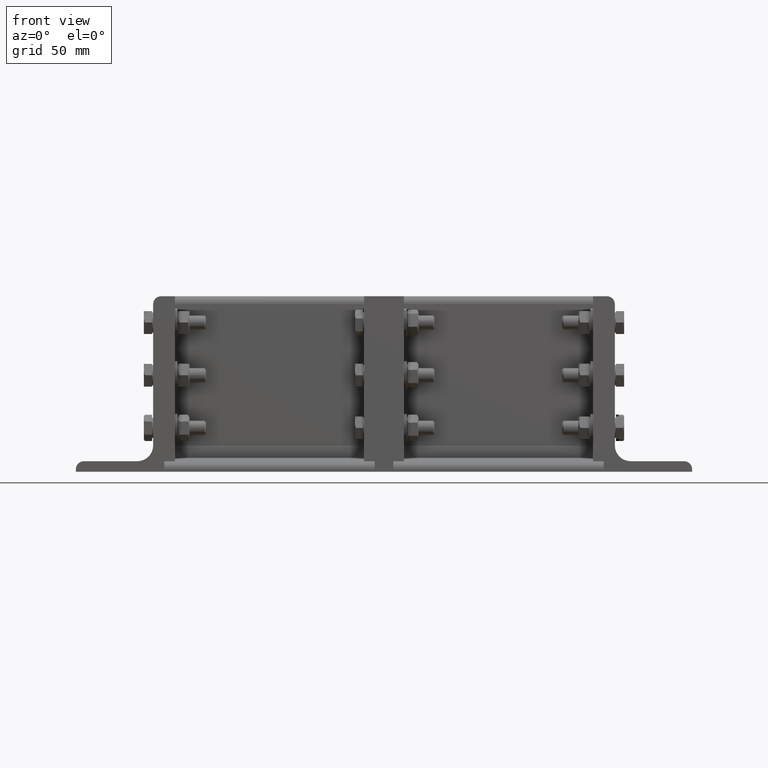
[diagram: clean part render]
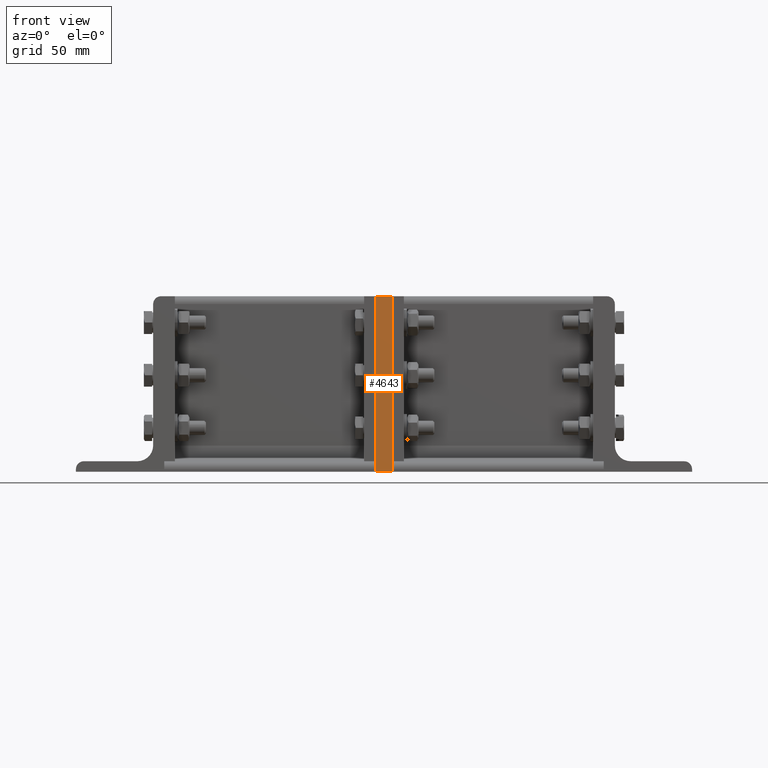
[diagram: same view with one face highlighted and labeled with its STEP entity id]
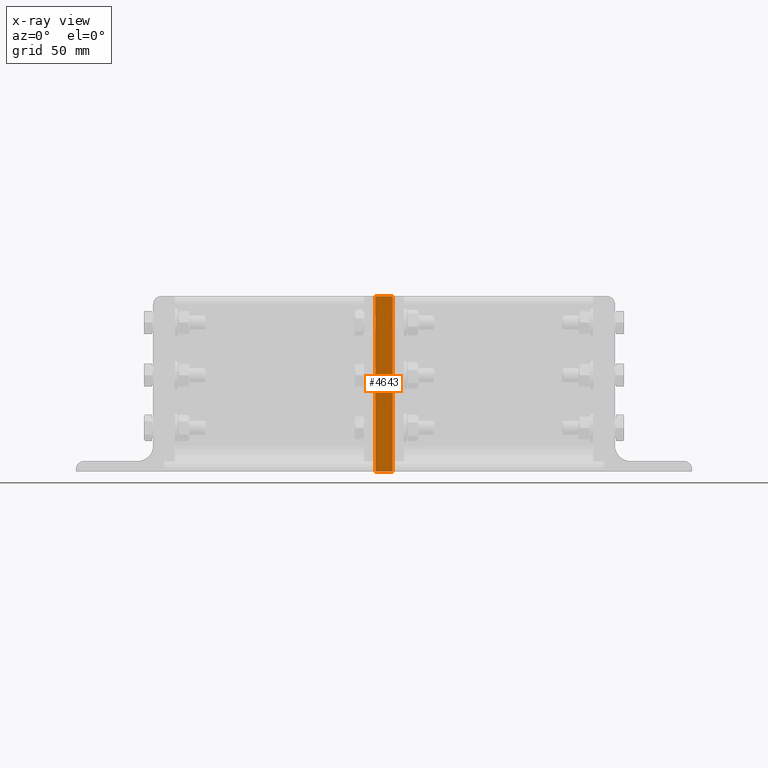
[diagram: x-ray of the same camera — body ghosted, the highlighted face saturated]
A machine part, front view. The second image highlights one B-rep face of the part: STEP entity #4643.
The next image is the same camera in x-ray: the body ghosted, the highlighted face saturated — about 0% of this face is hidden behind the body in this view.
In plain terms, the highlighted planar face has unit normal (-0, -1, 0).
Its self-contained STEP definition (entity closure, byte-faithful):
#4401=CARTESIAN_POINT('',(100.5,0.0,59.999999999999972));
#4402=VERTEX_POINT('',#4401);
#4411=CARTESIAN_POINT('',(100.5,10.0,59.999999999999972));
#4412=VERTEX_POINT('',#4411);
#4413=CARTESIAN_POINT('',(100.5,0.0,59.999999999999972));
#4414=DIRECTION('',(0.0,1.0,0.0));
#4415=VECTOR('',#4414,10.0);
#4416=LINE('',#4413,#4415);
#4417=EDGE_CURVE('',#4402,#4412,#4416,.T.);
#4596=CARTESIAN_POINT('',(100.5,0.0,-40.000000000000028));
#4597=VERTEX_POINT('',#4596);
#4605=CARTESIAN_POINT('',(100.5,10.0,-40.000000000000028));
#4606=VERTEX_POINT('',#4605);
#4613=CARTESIAN_POINT('',(100.5,0.0,-40.000000000000028));
#4614=DIRECTION('',(0.0,1.0,0.0));
#4615=VECTOR('',#4614,10.0);
#4616=LINE('',#4613,#4615);
#4617=EDGE_CURVE('',#4597,#4606,#4616,.T.);
#4622=CARTESIAN_POINT('',(100.5,0.0,59.999999999999972));
#4623=DIRECTION('',(1.0,0.0,0.0));
#4624=DIRECTION('',(0.0,0.0,-1.0));
#4625=AXIS2_PLACEMENT_3D('',#4622,#4623,#4624);
#4626=PLANE('',#4625);
#4627=CARTESIAN_POINT('',(100.5,0.0,-40.000000000000028));
#4628=DIRECTION('',(0.0,0.0,1.0));
#4629=VECTOR('',#4628,100.0);
#4630=LINE('',#4627,#4629);
#4631=EDGE_CURVE('',#4597,#4402,#4630,.T.);
#4632=ORIENTED_EDGE('',*,*,#4631,.F.);
#4633=ORIENTED_EDGE('',*,*,#4617,.T.);
#4634=CARTESIAN_POINT('',(100.5,10.0,59.999999999999972));
#4635=DIRECTION('',(0.0,0.0,-1.0));
#4636=VECTOR('',#4635,100.0);
#4637=LINE('',#4634,#4636);
#4638=EDGE_CURVE('',#4412,#4606,#4637,.T.);
#4639=ORIENTED_EDGE('',*,*,#4638,.F.);
#4640=ORIENTED_EDGE('',*,*,#4417,.F.);
#4641=EDGE_LOOP('',(#4632,#4633,#4639,#4640));
#4642=FACE_OUTER_BOUND('',#4641,.T.);
#4643=ADVANCED_FACE('',(#4642),#4626,.T.);